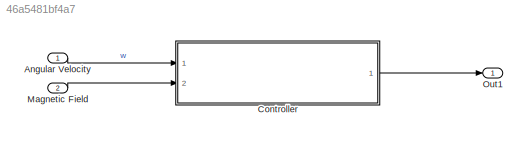
MODEL slx_46a5481bf4a7
KIND model
CONFIG AbsTol = auto
CONFIG EnableMultiTasking = off
CONFIG FixedStep = 200
CONFIG MaxStep = 4.0
CONFIG MinStep = .001
CONFIG RelTol = 1e-6
CONFIG SampleTimeConstraint = Unconstrained
CONFIG Solver = FixedStepAuto
CONFIG SolverName = FixedStepAuto
CONFIG StartTime = 0.0
CONFIG StopTime = 10000
BLOCK [Inport] Angular Velocity
  IconDisplay = Port number
  Interpolate = off
  OutDataTypeStr = double
  PortDimensions = 3
  SampleTime = [-1 0]
  SignalType = real
  VarSizeSig = No
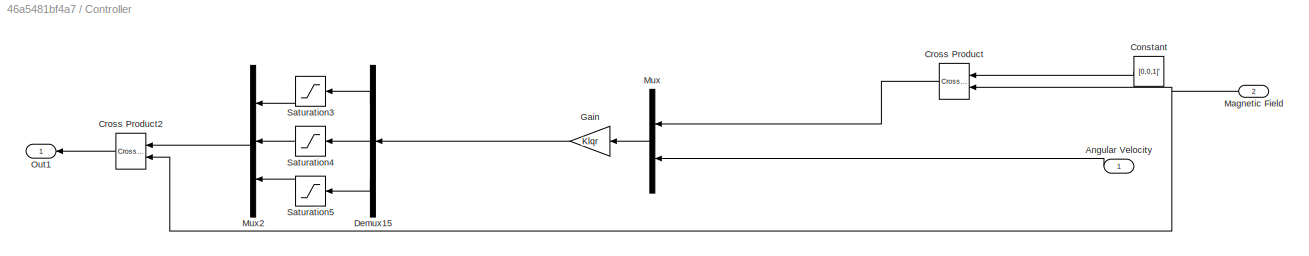
BLOCK [SubSystem] Controller
  Ports = [2, 1]
  RequestExecContextInheritance = off
  Tag = starshotsimv4p3lqrproto
  TreatAsAtomicUnit = on
  Variant = off
BLOCK [Inport] Controller/Angular Velocity
  IconDisplay = Port number
BLOCK [Constant] Controller/Constant
  Value = [0,0,1]'
BLOCK [Reference] Controller/Cross Product  REF=vrlib/Utilities/Cross Product
  Ports = [2, 1]
  SourceBlock = vrlib/Utilities/Cross Product
  SourceProductBaseCode = VR
  SourceProductName = Simulink 3D Animation
  SourceType = Cross Product
BLOCK [Reference] Controller/Cross Product2  REF=vrlib/Utilities/Cross Product
  Ports = [2, 1]
  SourceBlock = vrlib/Utilities/Cross Product
  SourceProductBaseCode = VR
  SourceProductName = Simulink 3D Animation
  SourceType = Cross Product
BLOCK [Demux] Controller/Demux15
  DisplayOption = bar
  Outputs = 3
  Ports = [1, 3]
BLOCK [Gain] Controller/Gain
  Gain = Klqr
  Multiplication = Matrix(K*u)
  OutDataTypeStr = Inherit: Inherit via internal rule
  ParamDataTypeStr = Inherit: Inherit via internal rule
  SaturateOnIntegerOverflow = off
BLOCK [Inport] Controller/Magnetic Field
  IconDisplay = Port number
  Port = 2
BLOCK [Mux] Controller/Mux
  DisplayOption = bar
  Inputs = 2
  Ports = [2, 1]
BLOCK [Mux] Controller/Mux2
  DisplayOption = bar
  Inputs = 3
  Ports = [3, 1]
BLOCK [Outport] Controller/Out1
  IconDisplay = Port number
BLOCK [Saturate] Controller/Saturation3
  InputPortMap = u0
  LowerLimit = -1.3
  Ports = [1, 1]
  UpperLimit = 1.3
BLOCK [Saturate] Controller/Saturation4
  InputPortMap = u0
  LowerLimit = -1.3
  Ports = [1, 1]
  UpperLimit = 1.3
BLOCK [Saturate] Controller/Saturation5
  InputPortMap = u0
  LowerLimit = -1.3
  Ports = [1, 1]
  UpperLimit = 1.3
BLOCK [Inport] Magnetic Field
  IconDisplay = Port number
  Interpolate = off
  OutDataTypeStr = double
  Port = 2
  PortDimensions = 3
  SampleTime = [-1 0]
  SignalType = real
  VarSizeSig = No
BLOCK [Outport] Out1
  IconDisplay = Port number
  OutDataTypeStr = double
  PortDimensions = 3
  SampleTime = [-1 0]
  SignalType = real
  VarSizeSig = No
LINE Angular Velocity:1 -> Controller:1
LINE Controller/Angular Velocity:1 -> Controller/Mux:2
LINE Controller/Constant:1 -> Controller/Cross Product:1
LINE Controller/Cross Product2:1 -> Controller/Out1:1
LINE Controller/Cross Product:1 -> Controller/Mux:1
LINE Controller/Demux15:1 -> Controller/Saturation3:1
LINE Controller/Demux15:2 -> Controller/Saturation4:1
LINE Controller/Demux15:3 -> Controller/Saturation5:1
LINE Controller/Gain:1 -> Controller/Demux15:1
NET Controller/Magnetic Field:1 -> Controller/Cross Product2:2, Controller/Cross Product:2
LINE Controller/Mux2:1 -> Controller/Cross Product2:1
LINE Controller/Mux:1 -> Controller/Gain:1
LINE Controller/Saturation3:1 -> Controller/Mux2:1
LINE Controller/Saturation4:1 -> Controller/Mux2:2
LINE Controller/Saturation5:1 -> Controller/Mux2:3
LINE Controller:1 -> Out1:1
LINE Magnetic Field:1 -> Controller:2
note: NET lines group one-source signal fan-out (src -> all destinations, sorted); 1:1 wires keep LINE
